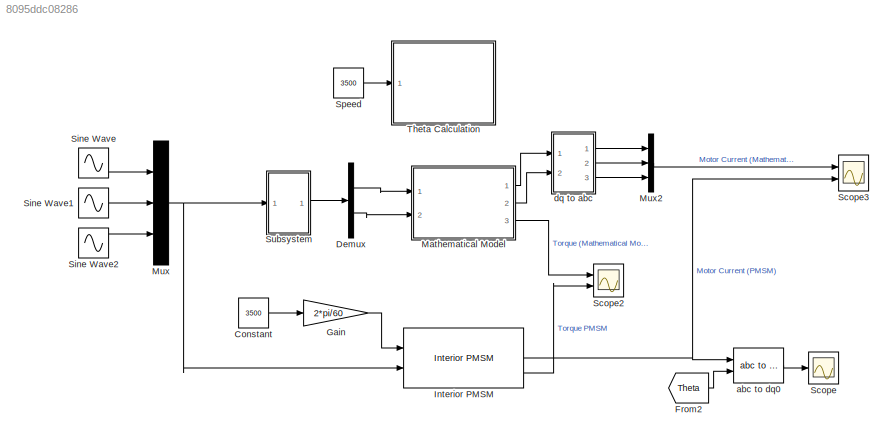
MODEL slx_8095ddc08286
KIND model
CONFIG AbsTol = auto
CONFIG EnableMultiTasking = off
CONFIG FixedStep = 1e-7
CONFIG InitFcn = P=4;\nRs=2;\nLd=0.0125;\nLq=0.0057;\nPhiPM=0.123;
CONFIG MaxStep = auto
CONFIG MinStep = auto
CONFIG RelTol = 1e-3
CONFIG SampleTimeConstraint = Unconstrained
CONFIG SolverName = ode4
CONFIG StartTime = 0.0
CONFIG StopTime = 10/116
BLOCK [Constant] Constant
  Value = 3500
BLOCK [Demux] Demux
  Outputs = 2
  Ports = [1, 2]
BLOCK [From] From2
  GotoTag = Theta
  TagVisibility = global
BLOCK [Gain] Gain
  Gain = 2*pi/60
BLOCK [Reference] Interior PMSM  REF=autolibpmsminterior/Interior PMSM
  Ports = [2, 3]
  SourceBlock = autolibpmsminterior/Interior PMSM
  SourceProductBaseCode = PW,DR,MT,UV,VE
  SourceType = Interior PMSM
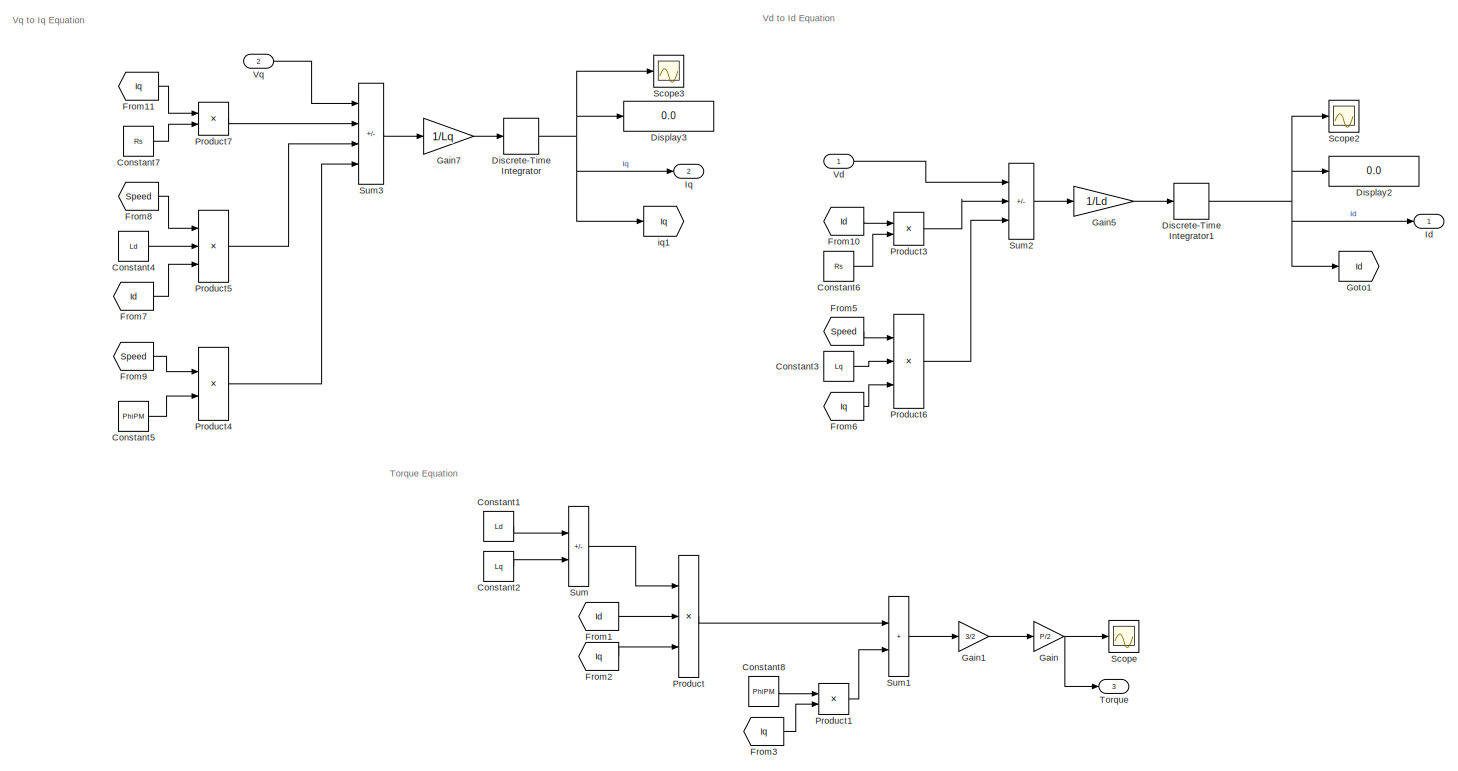
[diagram: Mathematical Model - part 1/1, most of the canvas]
BLOCK [SubSystem] Mathematical Model
  Ports = [2, 3]
  RequestExecContextInheritance = off
BLOCK [Constant] Mathematical Model/Constant1
  Value = Ld
BLOCK [Constant] Mathematical Model/Constant2
  Value = Lq
BLOCK [Constant] Mathematical Model/Constant3
  Value = Lq
BLOCK [Constant] Mathematical Model/Constant4
  Value = Ld
BLOCK [Constant] Mathematical Model/Constant5
  Value = PhiPM
BLOCK [Constant] Mathematical Model/Constant6
  Value = Rs
BLOCK [Constant] Mathematical Model/Constant7
  Value = Rs
BLOCK [Constant] Mathematical Model/Constant8
  Value = PhiPM
BLOCK [DiscreteIntegrator] Mathematical Model/Discrete-Time Integrator
  ICPrevOutput = DiscIntNeverNeededParam
  ICPrevScaledInput = DiscIntNeverNeededParam
  InitialConditionSetting = Auto
  Ports = [1, 1]
  SampleTime = -1
BLOCK [DiscreteIntegrator] Mathematical Model/Discrete-Time Integrator1
  ICPrevOutput = DiscIntNeverNeededParam
  ICPrevScaledInput = DiscIntNeverNeededParam
  InitialConditionSetting = Auto
  Ports = [1, 1]
  SampleTime = -1
BLOCK [Display] Mathematical Model/Display2
  Decimation = 1
  Ports = [1]
BLOCK [Display] Mathematical Model/Display3
  Decimation = 1
  Ports = [1]
BLOCK [From] Mathematical Model/From1
  GotoTag = Id
BLOCK [From] Mathematical Model/From10
  GotoTag = Id
BLOCK [From] Mathematical Model/From11
  GotoTag = Iq
BLOCK [From] Mathematical Model/From2
  GotoTag = Iq
BLOCK [From] Mathematical Model/From3
  GotoTag = Iq
BLOCK [From] Mathematical Model/From5
  GotoTag = Speed
  TagVisibility = global
BLOCK [From] Mathematical Model/From6
  GotoTag = Iq
BLOCK [From] Mathematical Model/From7
  GotoTag = Id
BLOCK [From] Mathematical Model/From8
  GotoTag = Speed
  TagVisibility = global
BLOCK [From] Mathematical Model/From9
  GotoTag = Speed
  TagVisibility = global
BLOCK [Gain] Mathematical Model/Gain
  Gain = P/2
BLOCK [Gain] Mathematical Model/Gain1
  Gain = 3/2
BLOCK [Gain] Mathematical Model/Gain5
  Gain = 1/Ld
BLOCK [Gain] Mathematical Model/Gain7
  Gain = 1/Lq
BLOCK [Goto] Mathematical Model/Goto1
  GotoTag = Id
BLOCK [Outport] Mathematical Model/Id
BLOCK [Outport] Mathematical Model/Iq
  Port = 2
BLOCK [Product] Mathematical Model/Product
  Inputs = 3
  Ports = [3, 1]
BLOCK [Product] Mathematical Model/Product1
  Ports = [2, 1]
BLOCK [Product] Mathematical Model/Product3
  Ports = [2, 1]
BLOCK [Product] Mathematical Model/Product4
  Ports = [2, 1]
BLOCK [Product] Mathematical Model/Product5
  Inputs = 3
  Ports = [3, 1]
BLOCK [Product] Mathematical Model/Product6
  Inputs = 3
  Ports = [3, 1]
BLOCK [Product] Mathematical Model/Product7
  Ports = [2, 1]
BLOCK [Scope] Mathematical Model/Scope
  Floating = off
  NumInputPorts = 1
  Ports = [1]
  ScopeSpecificationString = Simulink.scopes.TimeScopeBlockCfg('CurrentConfiguration', extmgr.ConfigurationSet(extmgr.Configuration('Core','General UI',true),extmgr.Configuration('Core','Source UI',true),extmgr.Configuration('Sources','WiredSimulink',true,'DataLoggingVariableName','ScopeData1'),extmgr.Configuration('Visuals','Time Domain',true,'SerializedDisplays',{struct('MinYLimReal','1.64769','MaxYLimReal','1.74749','YLabe...<+1438ch>
BLOCK [Scope] Mathematical Model/Scope2
  Floating = off
  NumInputPorts = 1
  Ports = [1]
  ScopeSpecificationString = Simulink.scopes.TimeScopeBlockCfg('CurrentConfiguration', extmgr.ConfigurationSet(extmgr.Configuration('Core','General UI',true,'FigureColor',[1 1 1]),extmgr.Configuration('Core','Source UI',true),extmgr.Configuration('Sources','WiredSimulink',true,'DataLoggingVariableName','ScopeData5'),extmgr.Configuration('Visuals','Time Domain',true,'SerializedDisplays',{struct('MinYLimReal','-37.51698','MaxYL...<+1564ch>
BLOCK [Scope] Mathematical Model/Scope3
  Floating = off
  NumInputPorts = 1
  Ports = [1]
  ScopeSpecificationString = Simulink.scopes.TimeScopeBlockCfg('CurrentConfiguration', extmgr.ConfigurationSet(extmgr.Configuration('Core','General UI',true,'FigureColor',[1 1 1]),extmgr.Configuration('Core','Source UI',true),extmgr.Configuration('Sources','WiredSimulink',true,'DataLoggingVariableName','ScopeData6'),extmgr.Configuration('Visuals','Time Domain',true,'SerializedDisplays',{struct('MinYLimReal','-50.73465','MaxYL...<+1562ch>
BLOCK [Sum] Mathematical Model/Sum
  IconShape = rectangular
  Inputs = +-
  Ports = [2, 1]
BLOCK [Sum] Mathematical Model/Sum1
  IconShape = rectangular
  Ports = [2, 1]
BLOCK [Sum] Mathematical Model/Sum2
  IconShape = rectangular
  Inputs = +-+
  Ports = [3, 1]
BLOCK [Sum] Mathematical Model/Sum3
  IconShape = rectangular
  Inputs = +---
  Ports = [4, 1]
BLOCK [Outport] Mathematical Model/Torque
  Port = 3
BLOCK [Inport] Mathematical Model/Vd
BLOCK [Inport] Mathematical Model/Vq
  Port = 2
BLOCK [Goto] Mathematical Model/iq1
  GotoTag = Iq
BLOCK [Mux] Mux
  DisplayOption = bar
  Inputs = 3
  Ports = [3, 1]
BLOCK [Mux] Mux2
  DisplayOption = bar
  Inputs = 3
  Ports = [3, 1]
BLOCK [Scope] Scope
  Floating = off
  NumInputPorts = 1
  Ports = [1]
  ScopeSpecificationString = Simulink.scopes.TimeScopeBlockCfg('CurrentConfiguration', extmgr.ConfigurationSet(extmgr.Configuration('Core','General UI',true),extmgr.Configuration('Core','Source UI',true),extmgr.Configuration('Sources','WiredSimulink',true),extmgr.Configuration('Visuals','Time Domain',true,'SerializedDisplays',{struct('MinYLimReal','-50.73246','MaxYLimReal','5.63694','YLabelReal','','MinYLimMag','0.00000','Max...<+2078ch>
BLOCK [Scope] Scope2
  Floating = off
  NumInputPorts = 2
  Ports = [2]
  ScopeSpecificationString = Simulink.scopes.TimeScopeBlockCfg('CurrentConfiguration', extmgr.ConfigurationSet(extmgr.Configuration('Core','General UI',true,'FigureColor',[1 1 1]),extmgr.Configuration('Core','Source UI',true),extmgr.Configuration('Sources','WiredSimulink',true,'DataLoggingVariableName','ScopeData2'),extmgr.Configuration('Visuals','Time Domain',true,'SerializedDisplays',{struct('MinYLimReal','-10.62776','MaxYL...<+2438ch>
BLOCK [Scope] Scope3
  Floating = off
  NumInputPorts = 2
  Ports = [2]
  ScopeSpecificationString = Simulink.scopes.TimeScopeBlockCfg('CurrentConfiguration', extmgr.ConfigurationSet(extmgr.Configuration('Core','General UI',true,'FigureColor',[1 1 1]),extmgr.Configuration('Core','Source UI',true),extmgr.Configuration('Sources','WiredSimulink',true,'DataLoggingVariableName','ScopeData1'),extmgr.Configuration('Visuals','Time Domain',true,'SerializedDisplays',{struct('MinYLimReal','-51.54339','MaxYL...<+3032ch>
BLOCK [Sin] Sine Wave
  Amplitude = 200*sqrt(2/3)
  Frequency = 733.0383
  Ports = [0, 1]
  SampleTime = 0
BLOCK [Sin] Sine Wave1
  Amplitude = 200*sqrt(2/3)
  Frequency = 733.0383
  Phase = -2*pi/3
  Ports = [0, 1]
  SampleTime = 0
BLOCK [Sin] Sine Wave2
  Amplitude = 200*sqrt(2/3)
  Frequency = 733.0383
  Phase = 2*pi/3
  Ports = [0, 1]
  SampleTime = 0
BLOCK [Constant] Speed
  Value = 3500
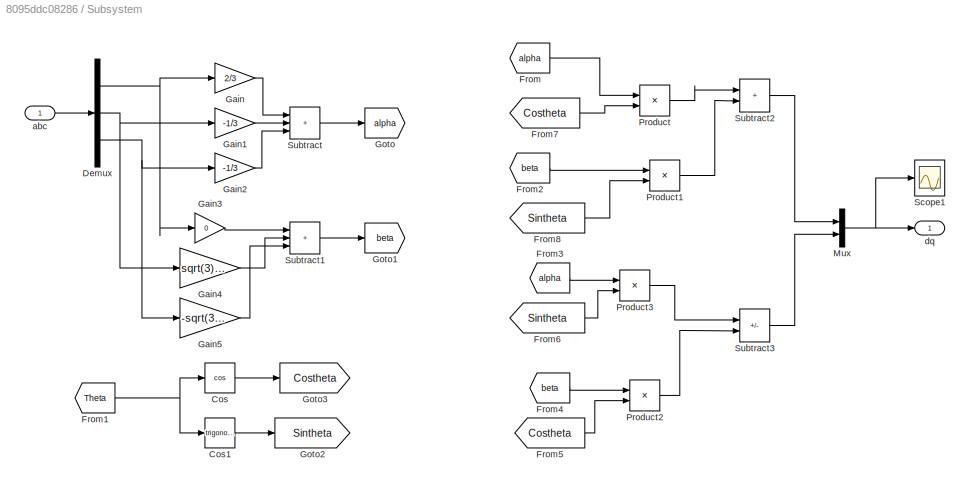
BLOCK [SubSystem] Subsystem
  Ports = [1, 1]
  RequestExecContextInheritance = off
BLOCK [Trigonometry] Subsystem/Cos
  Operator = cos
  Ports = [1, 1]
BLOCK [Trigonometry] Subsystem/Cos1
  Ports = [1, 1]
BLOCK [Demux] Subsystem/Demux
  Outputs = 3
  Ports = [1, 3]
BLOCK [From] Subsystem/From
  GotoTag = alpha
BLOCK [From] Subsystem/From1
  GotoTag = Theta
  TagVisibility = global
BLOCK [From] Subsystem/From2
  GotoTag = beta
BLOCK [From] Subsystem/From3
  GotoTag = alpha
BLOCK [From] Subsystem/From4
  GotoTag = beta
BLOCK [From] Subsystem/From5
  GotoTag = Costheta
BLOCK [From] Subsystem/From6
  GotoTag = Sintheta
BLOCK [From] Subsystem/From7
  GotoTag = Costheta
BLOCK [From] Subsystem/From8
  GotoTag = Sintheta
BLOCK [Gain] Subsystem/Gain
  Gain = 2/3
BLOCK [Gain] Subsystem/Gain1
  Gain = -1/3
BLOCK [Gain] Subsystem/Gain2
  Gain = -1/3
BLOCK [Gain] Subsystem/Gain3
  Gain = 0
BLOCK [Gain] Subsystem/Gain4
  Gain = sqrt(3)/3
BLOCK [Gain] Subsystem/Gain5
  Gain = -sqrt(3)/3
BLOCK [Goto] Subsystem/Goto
  GotoTag = alpha
BLOCK [Goto] Subsystem/Goto1
  GotoTag = beta
BLOCK [Goto] Subsystem/Goto2
  GotoTag = Sintheta
BLOCK [Goto] Subsystem/Goto3
  GotoTag = Costheta
BLOCK [Mux] Subsystem/Mux
  DisplayOption = bar
  Inputs = 2
  Ports = [2, 1]
BLOCK [Product] Subsystem/Product
  Ports = [2, 1]
BLOCK [Product] Subsystem/Product1
  Ports = [2, 1]
BLOCK [Product] Subsystem/Product2
  Ports = [2, 1]
BLOCK [Product] Subsystem/Product3
  Ports = [2, 1]
BLOCK [Scope] Subsystem/Scope1
  Floating = off
  NumInputPorts = 1
  Ports = [1]
  ScopeSpecificationString = Simulink.scopes.TimeScopeBlockCfg('CurrentConfiguration', extmgr.ConfigurationSet(extmgr.Configuration('Core','General UI',true),extmgr.Configuration('Core','Source UI',true),extmgr.Configuration('Sources','WiredSimulink',true,'DataLoggingVariableName','ScopeData3'),extmgr.Configuration('Visuals','Time Domain',true,'SerializedDisplays',{struct('MinYLimReal','-183.71186','MaxYLimReal','20.41357','Y...<+1496ch>
BLOCK [Sum] Subsystem/Subtract
  IconShape = rectangular
  Inputs = +++
  Ports = [3, 1]
BLOCK [Sum] Subsystem/Subtract1
  IconShape = rectangular
  Inputs = +++
  Ports = [3, 1]
BLOCK [Sum] Subsystem/Subtract2
  IconShape = rectangular
  Ports = [2, 1]
BLOCK [Sum] Subsystem/Subtract3
  IconShape = rectangular
  Inputs = -+
  Ports = [2, 1]
BLOCK [Inport] Subsystem/abc
BLOCK [Outport] Subsystem/dq
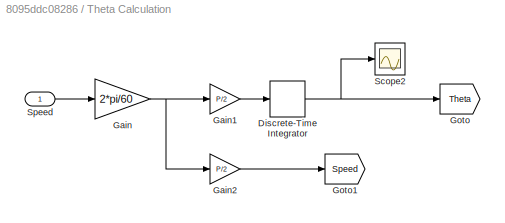
BLOCK [SubSystem] Theta Calculation
  Ports = [1]
  RequestExecContextInheritance = off
BLOCK [DiscreteIntegrator] Theta Calculation/Discrete-Time Integrator
  ICPrevOutput = DiscIntNeverNeededParam
  ICPrevScaledInput = DiscIntNeverNeededParam
  InitialConditionSetting = Auto
  Ports = [1, 1]
  SampleTime = -1
BLOCK [Gain] Theta Calculation/Gain
  Gain = 2*pi/60
BLOCK [Gain] Theta Calculation/Gain1
  Gain = P/2
BLOCK [Gain] Theta Calculation/Gain2
  Gain = P/2
BLOCK [Goto] Theta Calculation/Goto
  GotoTag = Theta
  TagVisibility = global
BLOCK [Goto] Theta Calculation/Goto1
  GotoTag = Speed
  TagVisibility = global
BLOCK [Scope] Theta Calculation/Scope2
  Floating = off
  NumInputPorts = 1
  Ports = [1]
  ScopeSpecificationString = Simulink.scopes.TimeScopeBlockCfg('CurrentConfiguration', extmgr.ConfigurationSet(extmgr.Configuration('Core','General UI',true),extmgr.Configuration('Core','Source UI',true),extmgr.Configuration('Sources','WiredSimulink',true,'DataLoggingVariableName','ScopeData4'),extmgr.Configuration('Visuals','Time Domain',true,'SerializedDisplays',{struct('MinYLimReal','-91.62979','MaxYLimReal','824.66807','Y...<+1469ch>
BLOCK [Inport] Theta Calculation/Speed
BLOCK [Reference] abc to dq0  REF=spsabctodq0Lib/abc to dq0
  Ports = [2, 1]
  SourceBlock = spsabctodq0Lib/abc to dq0
  SourceProductBaseCode = PS
  SourceType = abc to dq0 Transformation
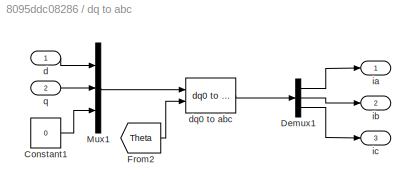
BLOCK [SubSystem] dq to abc
  Ports = [2, 3]
  RequestExecContextInheritance = off
BLOCK [Constant] dq to abc/Constant1
  Value = 0
BLOCK [Demux] dq to abc/Demux1
  Outputs = 3
  Ports = [1, 3]
BLOCK [From] dq to abc/From2
  GotoTag = Theta
  TagVisibility = global
BLOCK [Mux] dq to abc/Mux1
  DisplayOption = bar
  Inputs = 3
  Ports = [3, 1]
BLOCK [Inport] dq to abc/d
BLOCK [Reference] dq to abc/dq0 to abc  REF=spsdq0toabcLib/dq0 to abc
  Ports = [2, 1]
  SourceBlock = spsdq0toabcLib/dq0 to abc
  SourceProductBaseCode = PS
  SourceType = dq0 to abc Transformation
BLOCK [Outport] dq to abc/ia
BLOCK [Outport] dq to abc/ib
  Port = 2
BLOCK [Outport] dq to abc/ic
  Port = 3
BLOCK [Inport] dq to abc/q
  Port = 2
ANNOTATION Mathematical Model: Torque Equation
ANNOTATION Mathematical Model: Vd to Id Equation
ANNOTATION Mathematical Model: Vq to Iq Equation
LINE Constant:1 -> Gain:1
LINE Demux:1 -> Mathematical Model:1
LINE Demux:2 -> Mathematical Model:2
LINE From2:1 -> abc to dq0:2
LINE Gain:1 -> Interior PMSM:1
NET Interior PMSM:2 -> Scope3:2, abc to dq0:1
LINE Interior PMSM:3 -> Scope2:2
LINE Mathematical Model/Constant1:1 -> Mathematical Model/Sum:1
LINE Mathematical Model/Constant2:1 -> Mathematical Model/Sum:2
LINE Mathematical Model/Constant3:1 -> Mathematical Model/Product6:2
LINE Mathematical Model/Constant4:1 -> Mathematical Model/Product5:2
LINE Mathematical Model/Constant5:1 -> Mathematical Model/Product4:2
LINE Mathematical Model/Constant6:1 -> Mathematical Model/Product3:2
LINE Mathematical Model/Constant7:1 -> Mathematical Model/Product7:2
LINE Mathematical Model/Constant8:1 -> Mathematical Model/Product1:1
NET Mathematical Model/Discrete-Time Integrator1:1 -> Mathematical Model/Display2:1, Mathematical Model/Goto1:1, Mathematical Model/Id:1, Mathematical Model/Scope2:1
NET Mathematical Model/Discrete-Time Integrator:1 -> Mathematical Model/Display3:1, Mathematical Model/Iq:1, Mathematical Model/Scope3:1, Mathematical Model/iq1:1
LINE Mathematical Model/From10:1 -> Mathematical Model/Product3:1
LINE Mathematical Model/From11:1 -> Mathematical Model/Product7:1
LINE Mathematical Model/From1:1 -> Mathematical Model/Product:2
LINE Mathematical Model/From2:1 -> Mathematical Model/Product:3
LINE Mathematical Model/From3:1 -> Mathematical Model/Product1:2
LINE Mathematical Model/From5:1 -> Mathematical Model/Product6:1
LINE Mathematical Model/From6:1 -> Mathematical Model/Product6:3
LINE Mathematical Model/From7:1 -> Mathematical Model/Product5:3
LINE Mathematical Model/From8:1 -> Mathematical Model/Product5:1
LINE Mathematical Model/From9:1 -> Mathematical Model/Product4:1
LINE Mathematical Model/Gain1:1 -> Mathematical Model/Gain:1
LINE Mathematical Model/Gain5:1 -> Mathematical Model/Discrete-Time Integrator1:1
LINE Mathematical Model/Gain7:1 -> Mathematical Model/Discrete-Time Integrator:1
NET Mathematical Model/Gain:1 -> Mathematical Model/Scope:1, Mathematical Model/Torque:1
LINE Mathematical Model/Product1:1 -> Mathematical Model/Sum1:2
LINE Mathematical Model/Product3:1 -> Mathematical Model/Sum2:2
LINE Mathematical Model/Product4:1 -> Mathematical Model/Sum3:4
LINE Mathematical Model/Product5:1 -> Mathematical Model/Sum3:3
LINE Mathematical Model/Product6:1 -> Mathematical Model/Sum2:3
LINE Mathematical Model/Product7:1 -> Mathematical Model/Sum3:2
LINE Mathematical Model/Product:1 -> Mathematical Model/Sum1:1
LINE Mathematical Model/Sum1:1 -> Mathematical Model/Gain1:1
LINE Mathematical Model/Sum2:1 -> Mathematical Model/Gain5:1
LINE Mathematical Model/Sum3:1 -> Mathematical Model/Gain7:1
LINE Mathematical Model/Sum:1 -> Mathematical Model/Product:1
LINE Mathematical Model/Vd:1 -> Mathematical Model/Sum2:1
LINE Mathematical Model/Vq:1 -> Mathematical Model/Sum3:1
LINE Mathematical Model:1 -> dq to abc:1
LINE Mathematical Model:2 -> dq to abc:2
LINE Mathematical Model:3 -> Scope2:1
LINE Mux2:1 -> Scope3:1
NET Mux:1 -> Interior PMSM:2, Subsystem:1
LINE Sine Wave1:1 -> Mux:2
LINE Sine Wave2:1 -> Mux:3
LINE Sine Wave:1 -> Mux:1
LINE Speed:1 -> Theta Calculation:1
LINE Subsystem/Cos1:1 -> Subsystem/Goto2:1
LINE Subsystem/Cos:1 -> Subsystem/Goto3:1
NET Subsystem/Demux:1 -> Subsystem/Gain3:1, Subsystem/Gain:1
NET Subsystem/Demux:2 -> Subsystem/Gain1:1, Subsystem/Gain4:1
NET Subsystem/Demux:3 -> Subsystem/Gain2:1, Subsystem/Gain5:1
NET Subsystem/From1:1 -> Subsystem/Cos1:1, Subsystem/Cos:1
LINE Subsystem/From2:1 -> Subsystem/Product1:1
LINE Subsystem/From3:1 -> Subsystem/Product3:1
LINE Subsystem/From4:1 -> Subsystem/Product2:1
LINE Subsystem/From5:1 -> Subsystem/Product2:2
LINE Subsystem/From6:1 -> Subsystem/Product3:2
LINE Subsystem/From7:1 -> Subsystem/Product:2
LINE Subsystem/From8:1 -> Subsystem/Product1:2
LINE Subsystem/From:1 -> Subsystem/Product:1
LINE Subsystem/Gain1:1 -> Subsystem/Subtract:2
LINE Subsystem/Gain2:1 -> Subsystem/Subtract:3
LINE Subsystem/Gain3:1 -> Subsystem/Subtract1:1
LINE Subsystem/Gain4:1 -> Subsystem/Subtract1:2
LINE Subsystem/Gain5:1 -> Subsystem/Subtract1:3
LINE Subsystem/Gain:1 -> Subsystem/Subtract:1
NET Subsystem/Mux:1 -> Subsystem/Scope1:1, Subsystem/dq:1
LINE Subsystem/Product1:1 -> Subsystem/Subtract2:2
LINE Subsystem/Product2:1 -> Subsystem/Subtract3:2
LINE Subsystem/Product3:1 -> Subsystem/Subtract3:1
LINE Subsystem/Product:1 -> Subsystem/Subtract2:1
LINE Subsystem/Subtract1:1 -> Subsystem/Goto1:1
LINE Subsystem/Subtract2:1 -> Subsystem/Mux:1
LINE Subsystem/Subtract3:1 -> Subsystem/Mux:2
LINE Subsystem/Subtract:1 -> Subsystem/Goto:1
LINE Subsystem/abc:1 -> Subsystem/Demux:1
LINE Subsystem:1 -> Demux:1
NET Theta Calculation/Discrete-Time Integrator:1 -> Theta Calculation/Goto:1, Theta Calculation/Scope2:1
LINE Theta Calculation/Gain1:1 -> Theta Calculation/Discrete-Time Integrator:1
LINE Theta Calculation/Gain2:1 -> Theta Calculation/Goto1:1
NET Theta Calculation/Gain:1 -> Theta Calculation/Gain1:1, Theta Calculation/Gain2:1
LINE Theta Calculation/Speed:1 -> Theta Calculation/Gain:1
LINE abc to dq0:1 -> Scope:1
LINE dq to abc/Constant1:1 -> dq to abc/Mux1:3
LINE dq to abc/Demux1:1 -> dq to abc/ia:1
LINE dq to abc/Demux1:2 -> dq to abc/ib:1
LINE dq to abc/Demux1:3 -> dq to abc/ic:1
LINE dq to abc/From2:1 -> dq to abc/dq0 to abc:2
LINE dq to abc/Mux1:1 -> dq to abc/dq0 to abc:1
LINE dq to abc/d:1 -> dq to abc/Mux1:1
LINE dq to abc/dq0 to abc:1 -> dq to abc/Demux1:1
LINE dq to abc/q:1 -> dq to abc/Mux1:2
LINE dq to abc:1 -> Mux2:1
LINE dq to abc:2 -> Mux2:2
LINE dq to abc:3 -> Mux2:3
note: NET lines group one-source signal fan-out (src -> all destinations, sorted); 1:1 wires keep LINE
